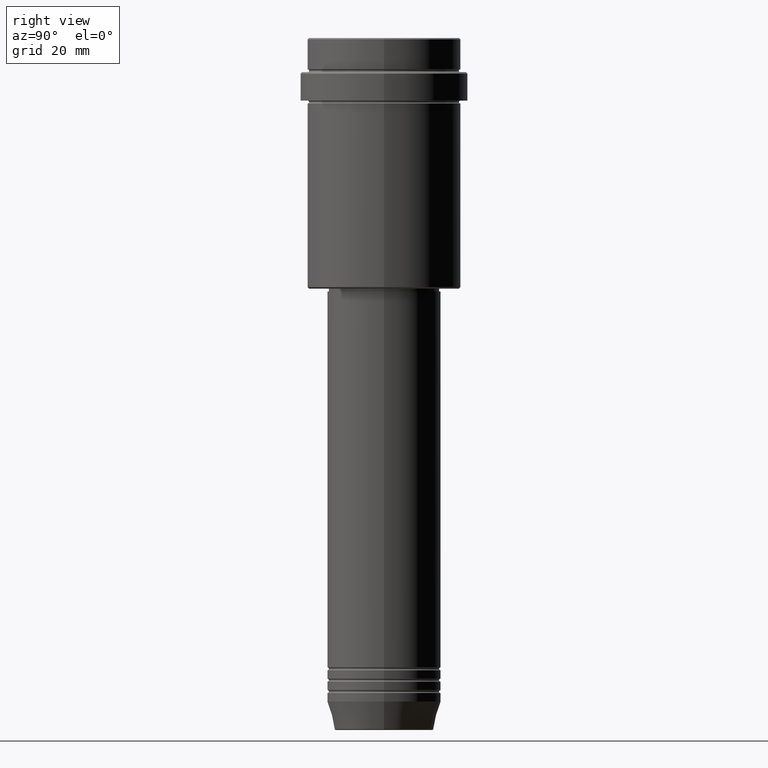
[diagram: clean part render]
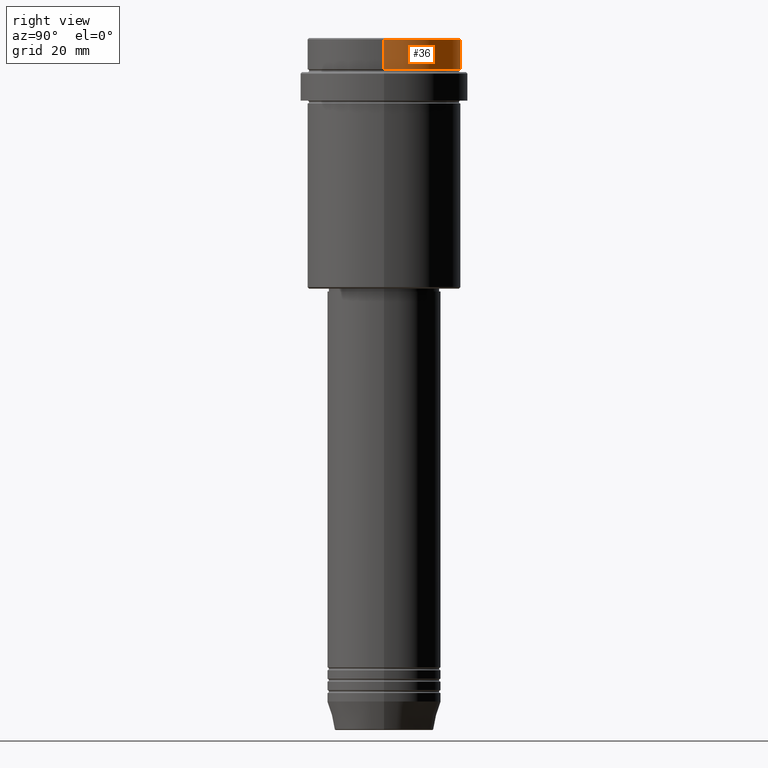
[diagram: same view with one face highlighted and labeled with its STEP entity id]
A machine part, right view. The second image highlights one B-rep face of the part: STEP entity #36.
In plain terms, the highlighted cylindrical surface (partial cylindrical patch) has radius 27 mm, axis along (-0, -0, 1).
Its self-contained STEP definition (entity closure, byte-faithful):
#27 = EDGE_CURVE ( 'NONE', #1183, #500, #309, .T. ) ;
#28 = DIRECTION ( 'NONE',  ( -0.000000000000000000, -0.000000000000000000, 1.000000000000000000 ) ) ;
#36 = ADVANCED_FACE ( 'NONE', ( #304 ), #327, .T. ) ;
#48 = ORIENTED_EDGE ( 'NONE', *, *, #732, .T. ) ;
#76 = CARTESIAN_POINT ( 'NONE',  ( -27.00000000000000355, 3.306546357697854128E-15, -0.4999999999999518718 ) ) ;
#83 = CARTESIAN_POINT ( 'NONE',  ( -27.00000000000000355, 3.306546357697854128E-15, 0.000000000000000000 ) ) ;
#116 = DIRECTION ( 'NONE',  ( 0.000000000000000000, 0.000000000000000000, -1.000000000000000000 ) ) ;
#143 = CARTESIAN_POINT ( 'NONE',  ( 27.00000000000000355, 0.000000000000000000, -11.00000000000000178 ) ) ;
#158 = ORIENTED_EDGE ( 'NONE', *, *, #393, .F. ) ;
#174 = VECTOR ( 'NONE', #956, 1000.000000000000000 ) ;
#193 = DIRECTION ( 'NONE',  ( -0.000000000000000000, -0.000000000000000000, 1.000000000000000000 ) ) ;
#259 = CARTESIAN_POINT ( 'NONE',  ( -27.00000000000000355, 3.306546357697854128E-15, -11.00000000000000178 ) ) ;
#261 = LINE ( 'NONE', #1378, #398 ) ;
#280 = EDGE_LOOP ( 'NONE', ( #474, #1281, #48, #158 ) ) ;
#304 = FACE_OUTER_BOUND ( 'NONE', #280, .T. ) ;
#309 = LINE ( 'NONE', #83, #174 ) ;
#327 = CYLINDRICAL_SURFACE ( 'NONE', #1385, 27.00000000000000355 ) ;
#378 = CIRCLE ( 'NONE', #1409, 27.00000000000000355 ) ;
#393 = EDGE_CURVE ( 'NONE', #751, #1135, #261, .T. ) ;
#398 = VECTOR ( 'NONE', #820, 1000.000000000000000 ) ;
#457 = CARTESIAN_POINT ( 'NONE',  ( 0.000000000000000000, 0.000000000000000000, -0.4999999999999518718 ) ) ;
#474 = ORIENTED_EDGE ( 'NONE', *, *, #1283, .T. ) ;
#500 = VERTEX_POINT ( 'NONE', #76 ) ;
#732 = EDGE_CURVE ( 'NONE', #500, #1135, #378, .T. ) ;
#740 = DIRECTION ( 'NONE',  ( 1.000000000000000000, 0.000000000000000000, 0.000000000000000000 ) ) ;
#751 = VERTEX_POINT ( 'NONE', #143 ) ;
#801 = CARTESIAN_POINT ( 'NONE',  ( 0.000000000000000000, 0.000000000000000000, -11.00000000000000178 ) ) ;
#820 = DIRECTION ( 'NONE',  ( -0.000000000000000000, -0.000000000000000000, 1.000000000000000000 ) ) ;
#842 = AXIS2_PLACEMENT_3D ( 'NONE', #801, #28, #1120 ) ;
#872 = DIRECTION ( 'NONE',  ( 1.000000000000000000, 0.000000000000000000, 0.000000000000000000 ) ) ;
#948 = CARTESIAN_POINT ( 'NONE',  ( 0.000000000000000000, 0.000000000000000000, 0.000000000000000000 ) ) ;
#956 = DIRECTION ( 'NONE',  ( -0.000000000000000000, -0.000000000000000000, 1.000000000000000000 ) ) ;
#1002 = CIRCLE ( 'NONE', #842, 27.00000000000000355 ) ;
#1120 = DIRECTION ( 'NONE',  ( 1.000000000000000000, 0.000000000000000000, 0.000000000000000000 ) ) ;
#1135 = VERTEX_POINT ( 'NONE', #1191 ) ;
#1183 = VERTEX_POINT ( 'NONE', #259 ) ;
#1191 = CARTESIAN_POINT ( 'NONE',  ( 27.00000000000000355, 0.000000000000000000, -0.4999999999999518718 ) ) ;
#1281 = ORIENTED_EDGE ( 'NONE', *, *, #27, .T. ) ;
#1283 = EDGE_CURVE ( 'NONE', #751, #1183, #1002, .T. ) ;
#1378 = CARTESIAN_POINT ( 'NONE',  ( 27.00000000000000355, 0.000000000000000000, 0.000000000000000000 ) ) ;
#1385 = AXIS2_PLACEMENT_3D ( 'NONE', #948, #193, #740 ) ;
#1409 = AXIS2_PLACEMENT_3D ( 'NONE', #457, #116, #872 ) ;